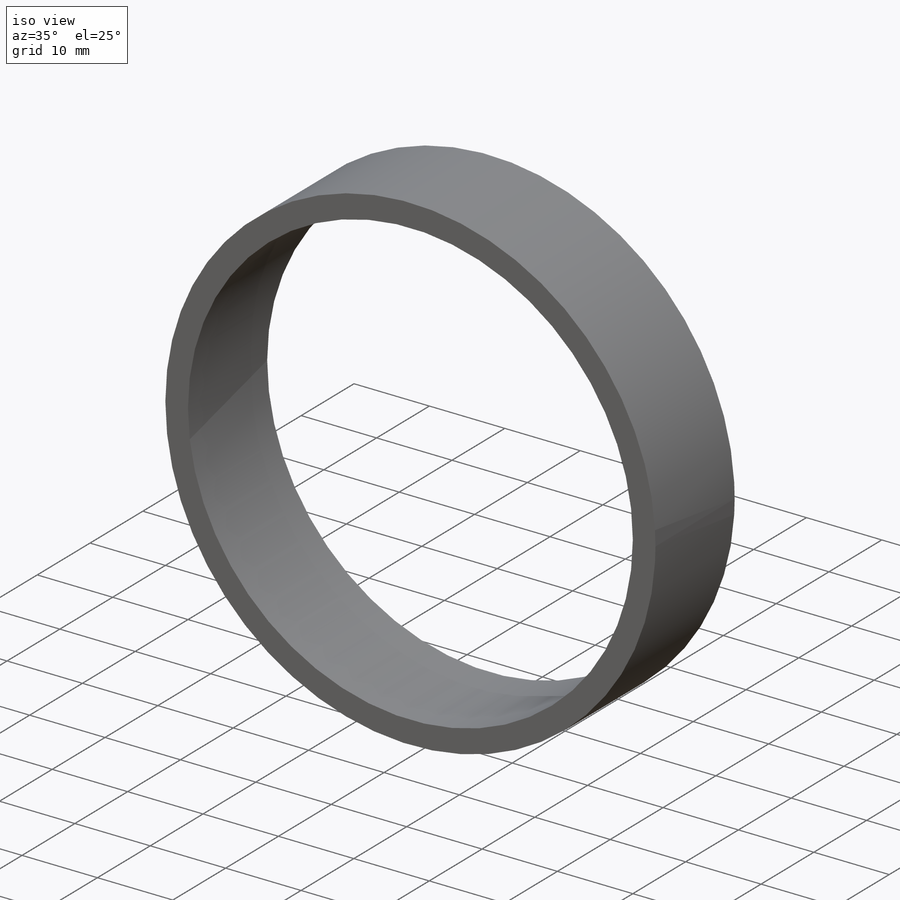
[diagram: iso view]
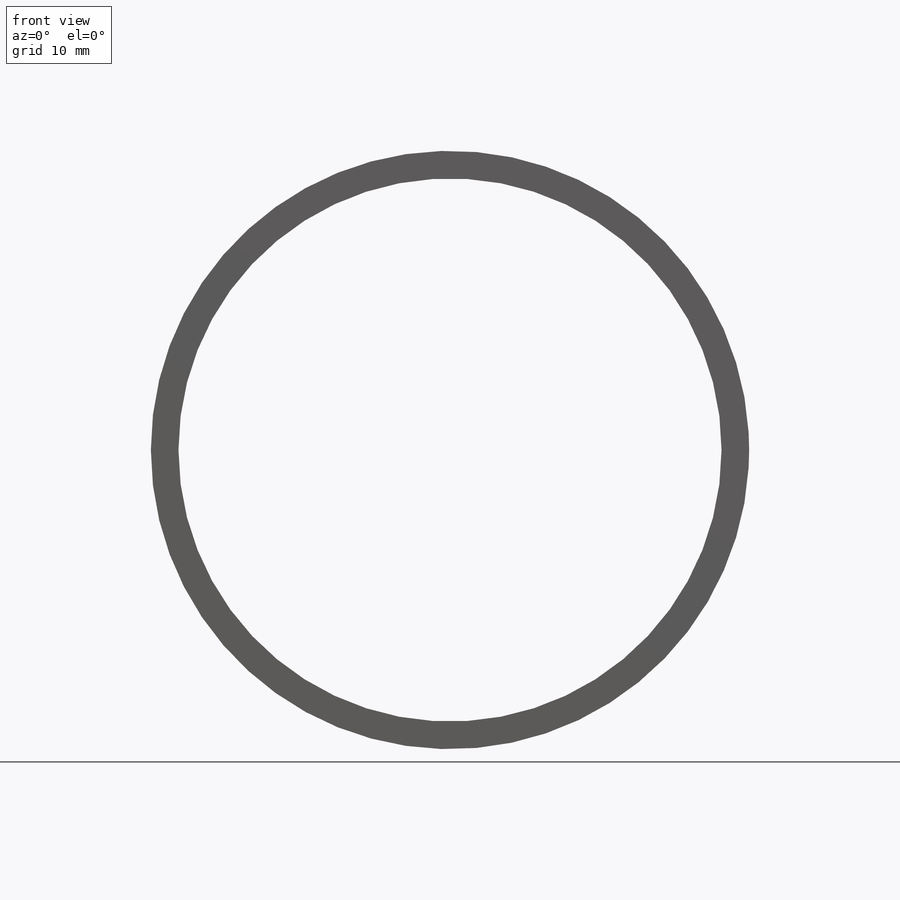
[diagram: front view]
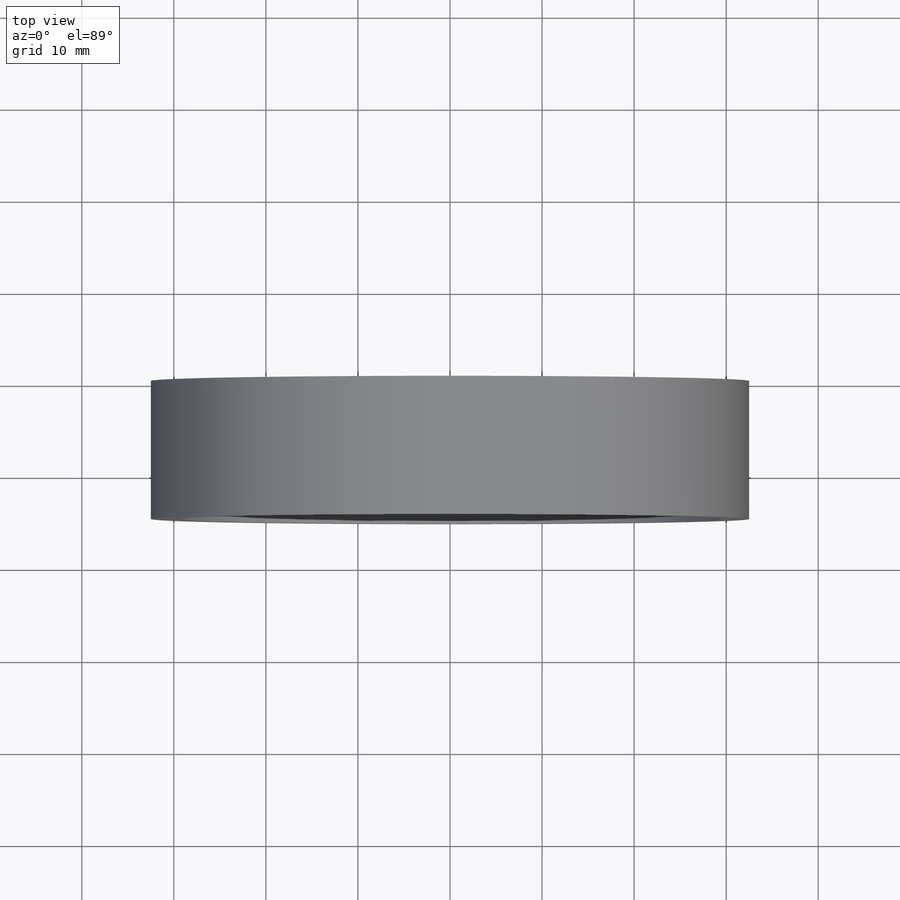
[diagram: top view]
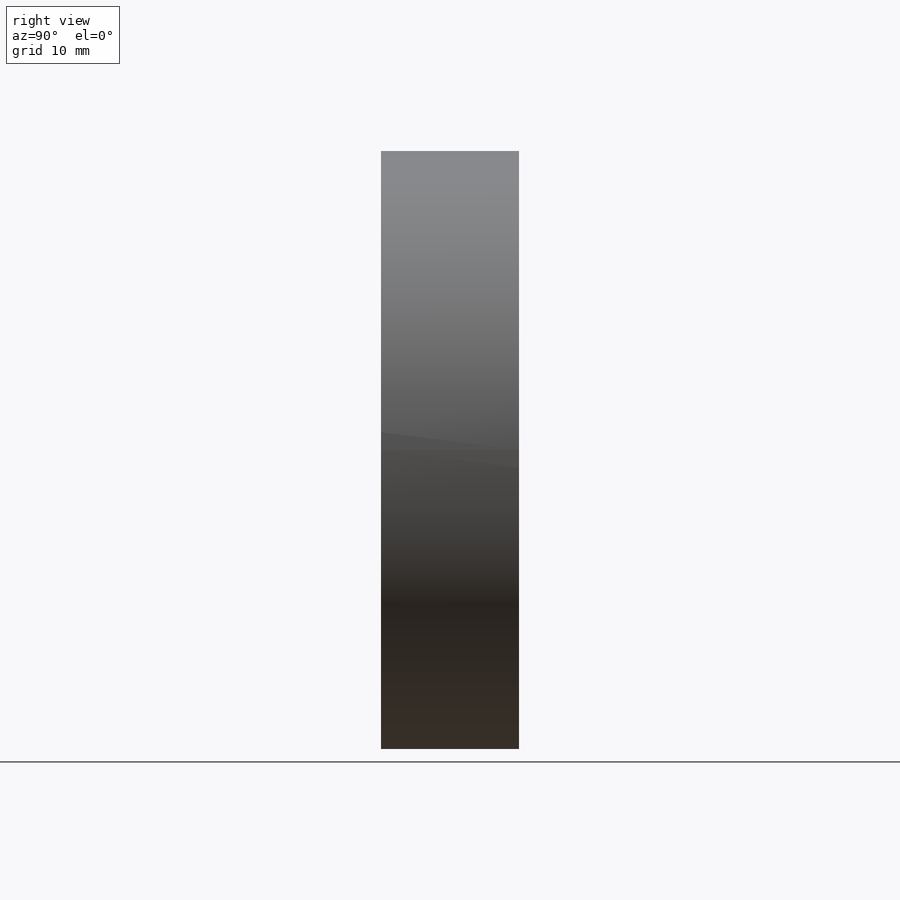
[diagram: right view]
SOLIDWORKS PART (.sldprt)
format: sldprt  version: not decoded by parser v0  size: 122,880 bytes
history: native  units: mm
features: sketch x21, plane x3, material x1, extrude x1 + 5 further entries (+8 scaffold rows collapsed)
feature tree (39):
  scaffold x8  (default folders/planes/origin — collapsed)
  material  "Matériau <non spécifié>"
  plane  "Plan de face"
  plane  "Plan de dessus"
  plane  "Plan de droite"
  sketch  "Esquisse1"  dims[GUID_DATA1=2524466369.0]
  sketch  "GUID_DATA2"
  sketch  "GUID_DATA3"
  sketch  "GUID_DATA1"
  sketch  "GUID_DATA2"
  sketch  "GUID_DATA3"  dims[GUID_DATA4=0.0 D1=59.0mm D2=65.0mm]
  extrude  "Boss.-Extru.1"  Depth=15mm
  "{56E6F068-4D3D-4D07-B81C-FEEEF9B5BAF7}"
  sketch  "GUID_DATA1"
  sketch  "GUID_DATA2"
  sketch  "GUID_DATA3"  dims[GUID_DATA4=0.0]
  "{5D853526-2849-42D0-B354-F85345520635}"
  sketch  "GUID_DATA1"
  sketch  "GUID_DATA2"
  sketch  "GUID_DATA3"  dims[GUID_DATA4=0.0]
  "{06172BCC-4036-41B3-A467-97C1CD59F311}"
  sketch  "GUID_DATA1"
  sketch  "GUID_DATA2"
  sketch  "GUID_DATA3"  dims[GUID_DATA4=0.0]
  "{13D3F910-A14A-439B-8F2C-36C4C7F96C60}"
  sketch  "GUID_DATA1"
  sketch  "GUID_DATA2"
  sketch  "GUID_DATA3"  dims[GUID_DATA4=0.0]
  "{BDF07ECF-C278-418B-B47B-9DD0431E59FE}"
  sketch  "GUID_DATA1"
  sketch  "GUID_DATA2"
  sketch  "GUID_DATA3"  dims[GUID_DATA4=0.0]
decode coverage: 8 of 22 modeling features carry decoded parameters; 5 rows unclassified (native names shown)
note: suppression state not decoded; provenance and decode notes live in map.json
